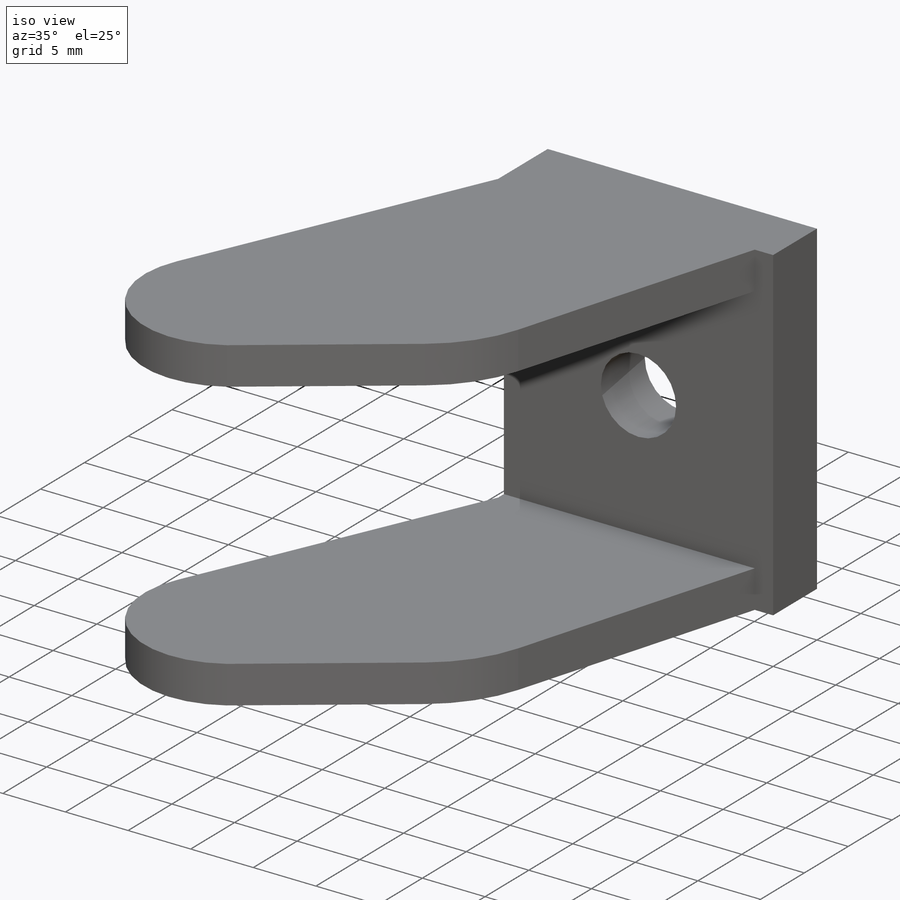
[diagram: iso view]
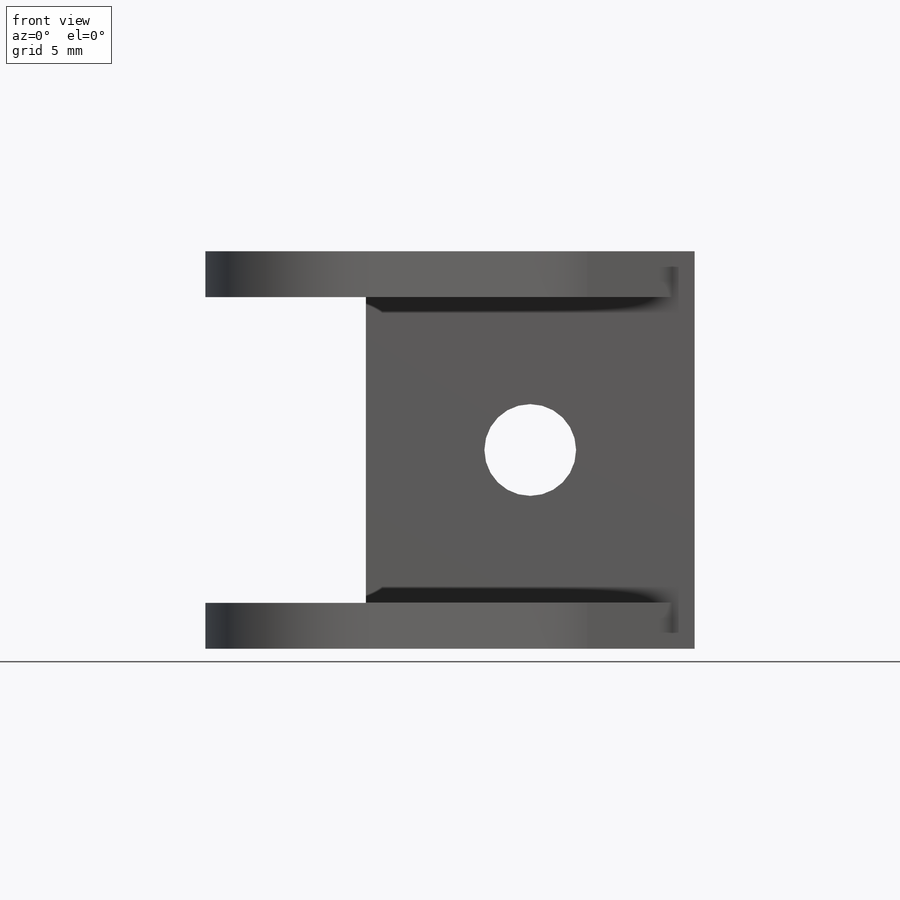
[diagram: front view]
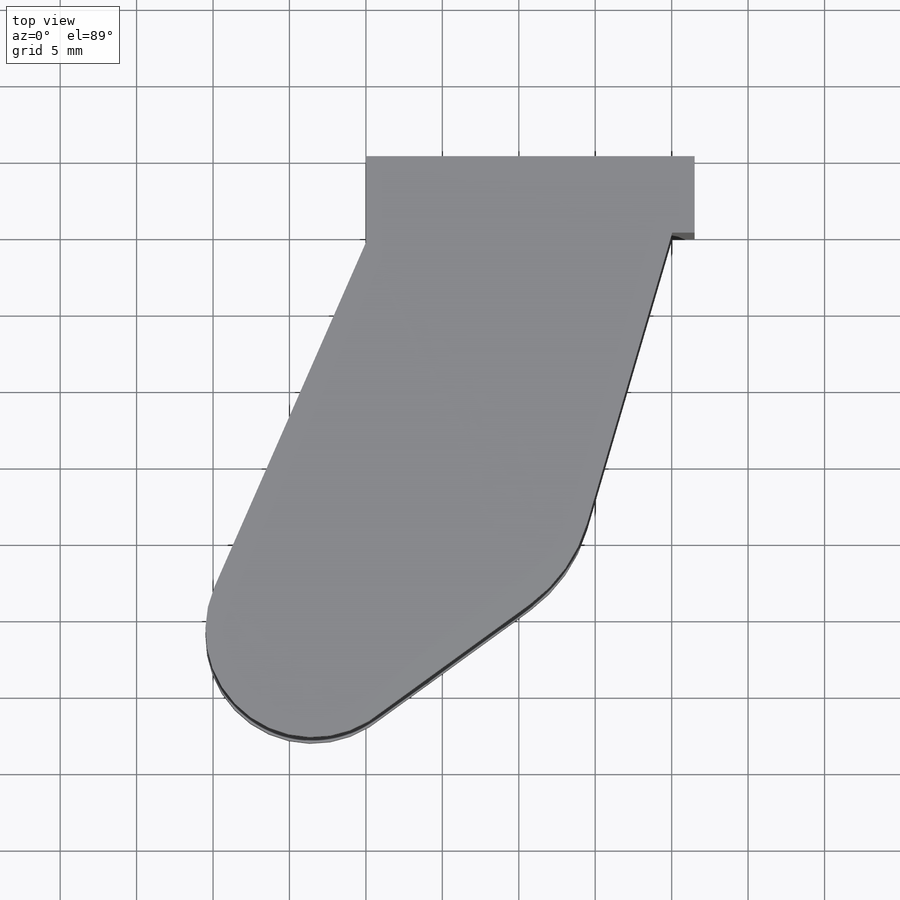
[diagram: top view]
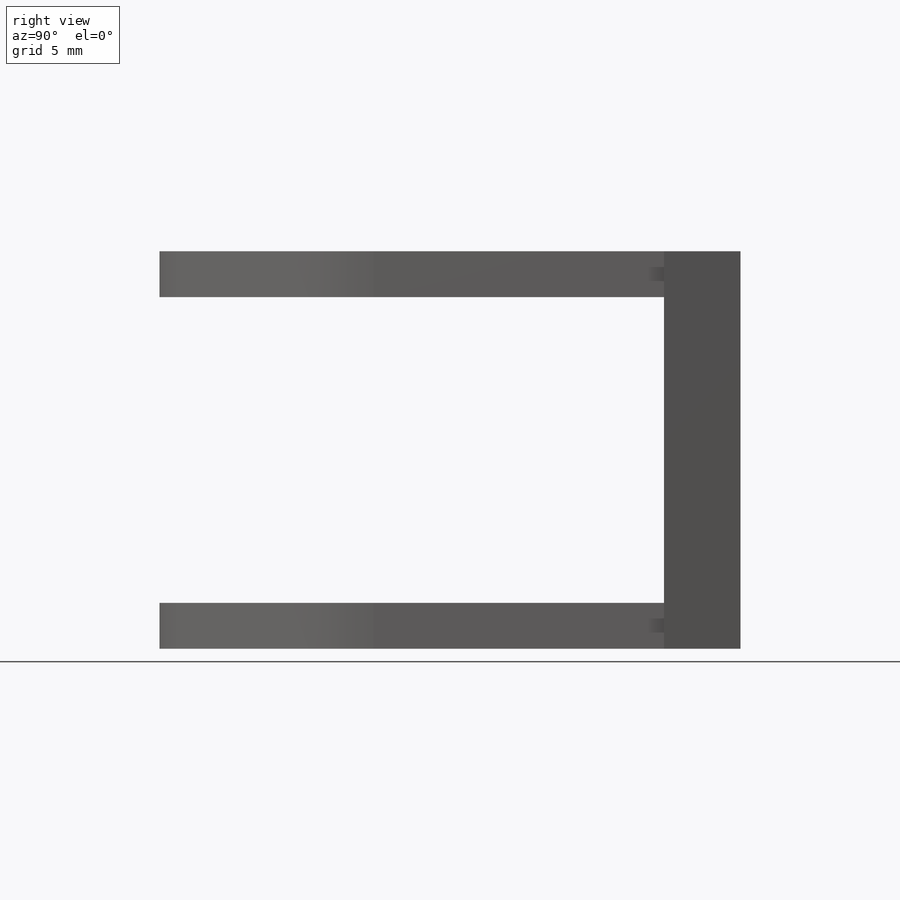
[diagram: right view]
SOLIDWORKS PART (.sldprt)
format: sldprt  version: not decoded by parser v0  size: 172,032 bytes
history: native  units: mm
features: sketch x4, extrude x3, cut_extrude x2, material x1 (+13 scaffold rows collapsed)
feature tree (23):
  scaffold x13  (default folders/planes/origin — collapsed)
  material  "Material <not specified>"
  sketch  "Sketch1"  dims[c1.D1=~22.339224mm c1.D2=7.0mm c1.D5=10.0mm c2.D1=21.5mm c2.D3=31.0mm c2.D4=25.0mm]
  extrude  "Boss-Extrude1"  Depth=26mm
  cut_extrude  "Cut-Extrude1"  [1 undecoded]
  sketch  "Sketch1<2>"  dims[D1=20.0mm]
  sketch  "Sketch4"
  extrude  "Boss-Extrude2"  Depth=5mm
  extrude  "Axis2"  [1 undecoded]
  sketch  "Sketch5"  dims[D1=~4.038684mm]
  cut_extrude  "Cut-Extrude2"  [1 undecoded]
decode coverage: 5 of 9 modeling features carry decoded parameters
note: ~ marks probable driven/reference dimensions
note: 3 parameter values undecoded
summary: no parameter record found for 3 features
note: suppression state not decoded; provenance and decode notes live in map.json
